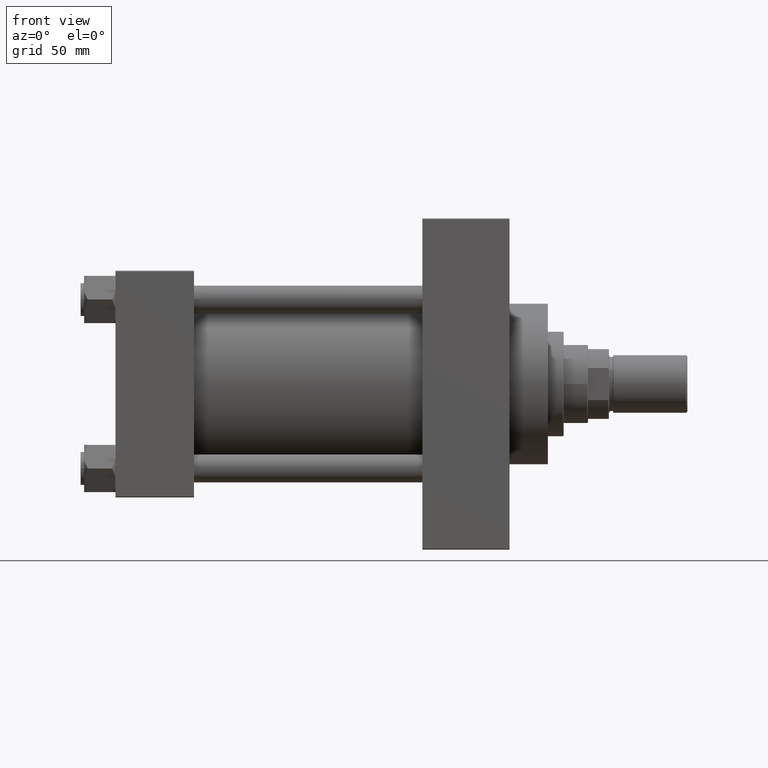
[diagram: clean part render]
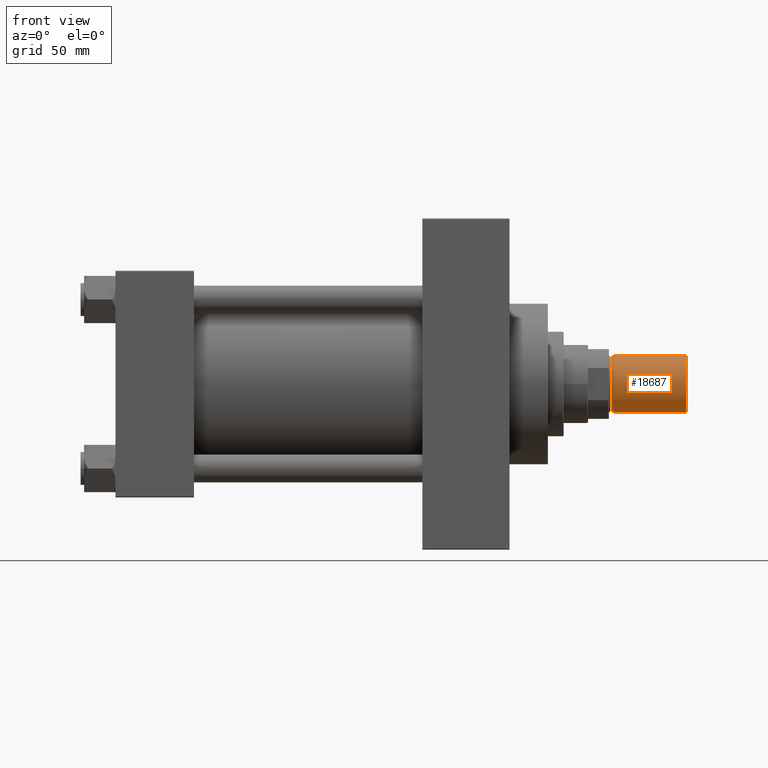
[diagram: same view with one face highlighted and labeled with its STEP entity id]
A machine part, front view. The second image highlights one B-rep face of the part: STEP entity #18687.
In plain terms, the highlighted cylindrical surface (edge-blend (fillet) strip) has radius 16.5 mm, axis along (1, -0, -0).
Its self-contained STEP definition (entity closure, byte-faithful):
#214 = VERTEX_POINT ( 'NONE', #37814 ) ;
#488 = ORIENTED_EDGE ( 'NONE', *, *, #50264, .F. ) ;
#925 = DIRECTION ( 'NONE',  ( -0.000000000000000000, -0.000000000000000000, -1.000000000000000000 ) ) ;
#2377 = CARTESIAN_POINT ( 'NONE',  ( 16.50000000000000000, 2.020667218593133100E-15, 0.8000000000000020428 ) ) ;
#5278 = VECTOR ( 'NONE', #925, 1000.000000000000000 ) ;
#5319 = CIRCLE ( 'NONE', #23252, 16.50000000000000000 ) ;
#6121 = DIRECTION ( 'NONE',  ( -0.000000000000000000, -0.000000000000000000, 1.000000000000000000 ) ) ;
#7941 = CARTESIAN_POINT ( 'NONE',  ( 16.50000000000000000, 2.020667218593133100E-15, 42.50000000000000000 ) ) ;
#9934 = CARTESIAN_POINT ( 'NONE',  ( 0.000000000000000000, 0.000000000000000000, 0.8000000000000020428 ) ) ;
#10642 = CARTESIAN_POINT ( 'NONE',  ( 16.50000000000000000, 2.020667218593133100E-15, 42.50000000000000000 ) ) ;
#10651 = FACE_OUTER_BOUND ( 'NONE', #30568, .T. ) ;
#11385 = EDGE_CURVE ( 'NONE', #214, #28008, #39709, .T. ) ;
#14965 = ORIENTED_EDGE ( 'NONE', *, *, #11385, .T. ) ;
#15374 = ORIENTED_EDGE ( 'NONE', *, *, #22942, .F. ) ;
#15713 = DIRECTION ( 'NONE',  ( 0.000000000000000000, 0.000000000000000000, 1.000000000000000000 ) ) ;
#16526 = AXIS2_PLACEMENT_3D ( 'NONE', #30038, #41516, #34115 ) ;
#17888 = VERTEX_POINT ( 'NONE', #10642 ) ;
#18687 = ADVANCED_FACE ( 'NONE', ( #10651 ), #37930, .T. ) ;
#20042 = AXIS2_PLACEMENT_3D ( 'NONE', #31524, #15713, #44176 ) ;
#22942 = EDGE_CURVE ( 'NONE', #17888, #43745, #35206, .T. ) ;
#23252 = AXIS2_PLACEMENT_3D ( 'NONE', #9934, #6121, #49908 ) ;
#25770 = CIRCLE ( 'NONE', #20042, 16.50000000000000000 ) ;
#28008 = VERTEX_POINT ( 'NONE', #28550 ) ;
#28074 = DIRECTION ( 'NONE',  ( -0.000000000000000000, -0.000000000000000000, -1.000000000000000000 ) ) ;
#28550 = CARTESIAN_POINT ( 'NONE',  ( -16.50000000000000000, 0.000000000000000000, 0.8000000000000020428 ) ) ;
#30038 = CARTESIAN_POINT ( 'NONE',  ( 0.000000000000000000, 0.000000000000000000, 42.50000000000000000 ) ) ;
#30568 = EDGE_LOOP ( 'NONE', ( #15374, #488, #14965, #36105 ) ) ;
#31524 = CARTESIAN_POINT ( 'NONE',  ( 0.000000000000000000, 0.000000000000000000, 42.50000000000000000 ) ) ;
#34115 = DIRECTION ( 'NONE',  ( -1.000000000000000000, 0.000000000000000000, 0.000000000000000000 ) ) ;
#35206 = LINE ( 'NONE', #7941, #50000 ) ;
#35870 = CARTESIAN_POINT ( 'NONE',  ( -16.50000000000000000, 0.000000000000000000, 42.50000000000000000 ) ) ;
#36105 = ORIENTED_EDGE ( 'NONE', *, *, #48446, .T. ) ;
#37814 = CARTESIAN_POINT ( 'NONE',  ( -16.50000000000000000, 0.000000000000000000, 42.50000000000000000 ) ) ;
#37930 = CYLINDRICAL_SURFACE ( 'NONE', #16526, 16.50000000000000000 ) ;
#39709 = LINE ( 'NONE', #35870, #5278 ) ;
#41516 = DIRECTION ( 'NONE',  ( -0.000000000000000000, -0.000000000000000000, -1.000000000000000000 ) ) ;
#43745 = VERTEX_POINT ( 'NONE', #2377 ) ;
#44176 = DIRECTION ( 'NONE',  ( 1.000000000000000000, 0.000000000000000000, 0.000000000000000000 ) ) ;
#48446 = EDGE_CURVE ( 'NONE', #28008, #43745, #5319, .T. ) ;
#49908 = DIRECTION ( 'NONE',  ( 1.000000000000000000, 0.000000000000000000, 0.000000000000000000 ) ) ;
#50000 = VECTOR ( 'NONE', #28074, 1000.000000000000000 ) ;
#50264 = EDGE_CURVE ( 'NONE', #214, #17888, #25770, .T. ) ;